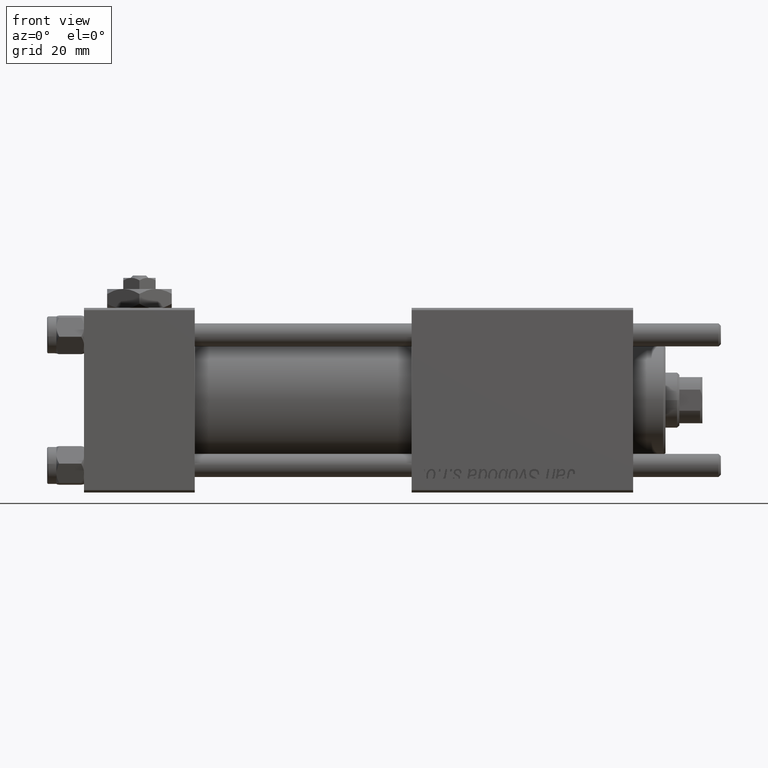
[diagram: clean part render]
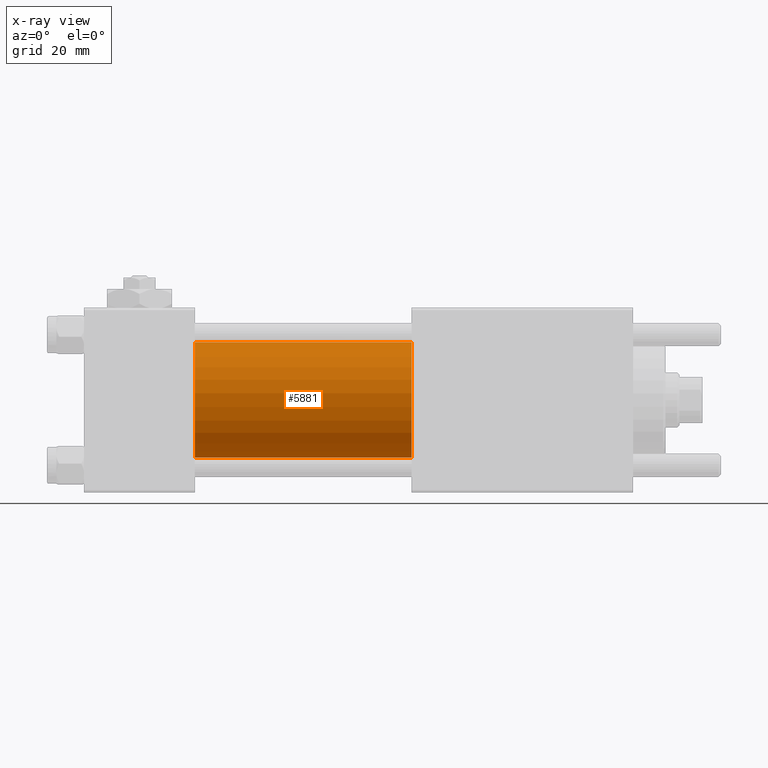
[diagram: x-ray — body ghosted, one internal face saturated and labeled with its STEP entity id]
A machine part, front view, then the same camera in x-ray: the body is ghosted and one INTERNAL B-rep face — a face not visible from any outside direction — is saturated and labeled: STEP entity #5881.
In plain terms, the highlighted cylindrical surface (partial cylindrical patch) has radius 12.5 mm, axis along (-1, -0, -0).
Its self-contained STEP definition (entity closure, byte-faithful):
#1093 = AXIS2_PLACEMENT_3D ( 'NONE', #57479, #15826, #39468 ) ;
#2040 = AXIS2_PLACEMENT_3D ( 'NONE', #41399, #38122, #10917 ) ;
#2339 = CARTESIAN_POINT ( 'NONE',  ( 71.00000000000001421, -2.602085213965210642E-15, 12.49999999999999645 ) ) ;
#3650 = CARTESIAN_POINT ( 'NONE',  ( 71.00000000000001421, -1.071276715031019515E-15, -12.49999999999999645 ) ) ;
#5334 = FACE_OUTER_BOUND ( 'NONE', #12253, .T. ) ;
#5881 = ADVANCED_FACE ( 'NONE', ( #5334 ), #55570, .F. ) ;
#8516 = ORIENTED_EDGE ( 'NONE', *, *, #34849, .F. ) ;
#8628 = CIRCLE ( 'NONE', #1093, 12.49999999999999645 ) ;
#9238 = EDGE_CURVE ( 'NONE', #35588, #11801, #41406, .T. ) ;
#10917 = DIRECTION ( 'NONE',  ( 0.000000000000000000, 0.000000000000000000, 1.000000000000000000 ) ) ;
#11210 = CARTESIAN_POINT ( 'NONE',  ( 24.00000000000000000, -1.071276715031019515E-15, -12.49999999999999645 ) ) ;
#11755 = VECTOR ( 'NONE', #38400, 1000.000000000000000 ) ;
#11801 = VERTEX_POINT ( 'NONE', #11210 ) ;
#12253 = EDGE_LOOP ( 'NONE', ( #38644, #24698, #29619, #8516 ) ) ;
#14071 = DIRECTION ( 'NONE',  ( 1.000000000000000000, 0.000000000000000000, 0.000000000000000000 ) ) ;
#15826 = DIRECTION ( 'NONE',  ( 1.000000000000000000, 0.000000000000000000, 0.000000000000000000 ) ) ;
#19860 = VERTEX_POINT ( 'NONE', #36497 ) ;
#21387 = DIRECTION ( 'NONE',  ( -1.000000000000000000, -0.000000000000000000, -0.000000000000000000 ) ) ;
#23363 = EDGE_CURVE ( 'NONE', #48050, #35588, #55780, .T. ) ;
#24292 = EDGE_CURVE ( 'NONE', #19860, #11801, #8628, .T. ) ;
#24698 = ORIENTED_EDGE ( 'NONE', *, *, #9238, .T. ) ;
#26048 = CARTESIAN_POINT ( 'NONE',  ( 71.00000000000001421, -1.071276715031019515E-15, -12.49999999999999645 ) ) ;
#29619 = ORIENTED_EDGE ( 'NONE', *, *, #24292, .F. ) ;
#30271 = AXIS2_PLACEMENT_3D ( 'NONE', #36270, #14071, #32112 ) ;
#32112 = DIRECTION ( 'NONE',  ( 0.000000000000000000, 0.000000000000000000, -1.000000000000000000 ) ) ;
#34115 = CARTESIAN_POINT ( 'NONE',  ( 71.00000000000001421, -2.602085213965210642E-15, 12.49999999999999645 ) ) ;
#34849 = EDGE_CURVE ( 'NONE', #48050, #19860, #42837, .T. ) ;
#35588 = VERTEX_POINT ( 'NONE', #26048 ) ;
#36270 = CARTESIAN_POINT ( 'NONE',  ( 71.00000000000001421, -2.602085213965210642E-15, 0.000000000000000000 ) ) ;
#36497 = CARTESIAN_POINT ( 'NONE',  ( 24.00000000000000000, -2.602085213965210642E-15, 12.49999999999999645 ) ) ;
#38122 = DIRECTION ( 'NONE',  ( -1.000000000000000000, -0.000000000000000000, -0.000000000000000000 ) ) ;
#38400 = DIRECTION ( 'NONE',  ( -1.000000000000000000, -0.000000000000000000, -0.000000000000000000 ) ) ;
#38644 = ORIENTED_EDGE ( 'NONE', *, *, #23363, .T. ) ;
#39468 = DIRECTION ( 'NONE',  ( 0.000000000000000000, 0.000000000000000000, -1.000000000000000000 ) ) ;
#41399 = CARTESIAN_POINT ( 'NONE',  ( 71.00000000000001421, -2.602085213965210642E-15, 0.000000000000000000 ) ) ;
#41406 = LINE ( 'NONE', #3650, #50816 ) ;
#42837 = LINE ( 'NONE', #2339, #11755 ) ;
#48050 = VERTEX_POINT ( 'NONE', #34115 ) ;
#50816 = VECTOR ( 'NONE', #21387, 1000.000000000000000 ) ;
#55570 = CYLINDRICAL_SURFACE ( 'NONE', #2040, 12.49999999999999645 ) ;
#55780 = CIRCLE ( 'NONE', #30271, 12.49999999999999645 ) ;
#57479 = CARTESIAN_POINT ( 'NONE',  ( 24.00000000000000000, -2.602085213965210642E-15, 0.000000000000000000 ) ) ;